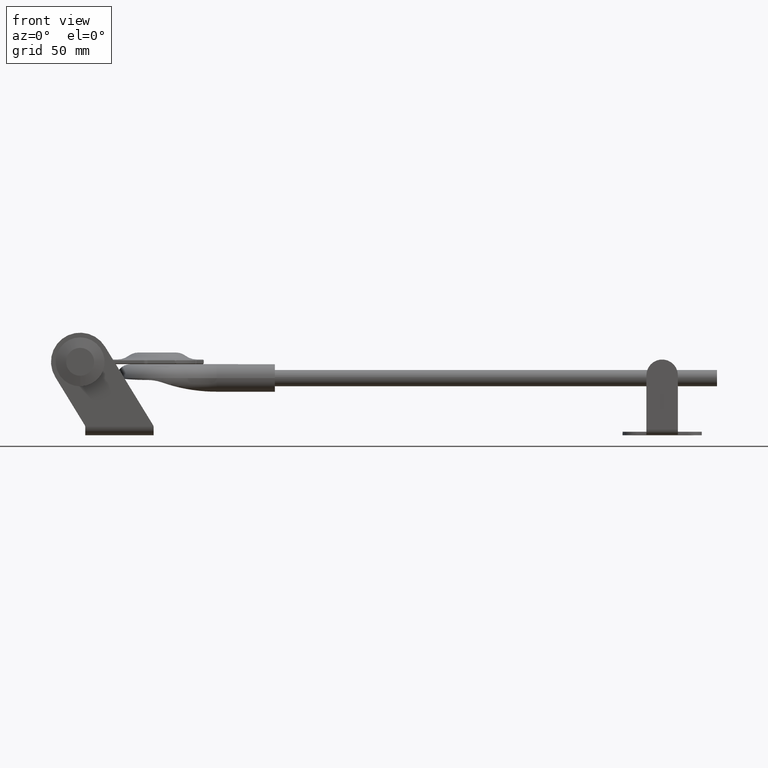
[diagram: clean part render]
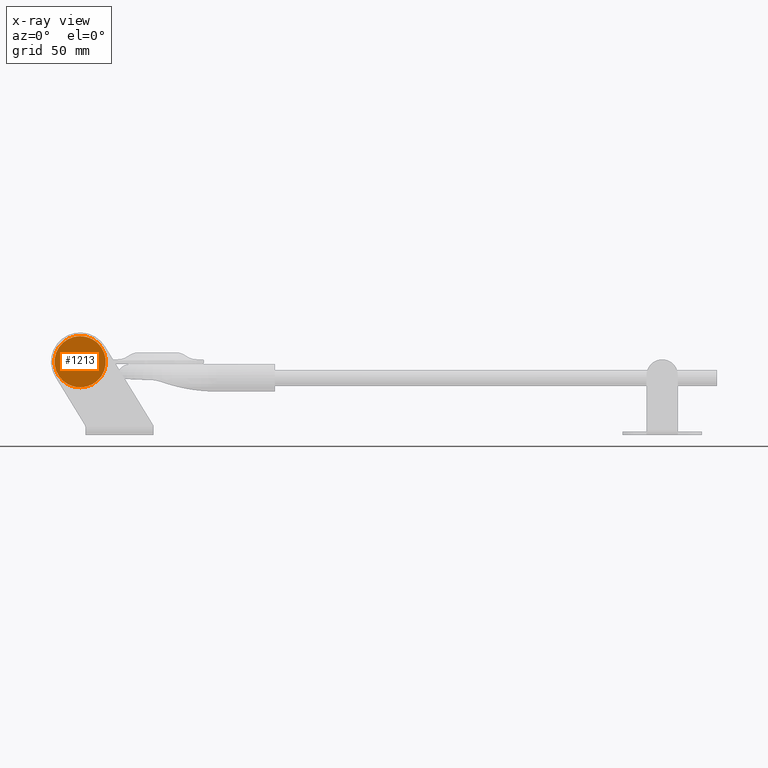
[diagram: x-ray — body ghosted, one internal face saturated and labeled with its STEP entity id]
A machine part, front view, then the same camera in x-ray: the body is ghosted and one INTERNAL B-rep face — a face not visible from any outside direction — is saturated and labeled: STEP entity #1213.
In plain terms, the highlighted planar face has unit normal (0, -1, 0).
Its self-contained STEP definition (entity closure, byte-faithful):
#1213 = ADVANCED_FACE ( 'NONE', ( #22680 ), #17088, .F. ) ;
#2064 = CARTESIAN_POINT ( 'NONE',  ( 1.734723475976807094E-15, 4.999999999999997335, 0.000000000000000000 ) ) ;
#6684 = VERTEX_POINT ( 'NONE', #8780 ) ;
#8780 = CARTESIAN_POINT ( 'NONE',  ( 1.734723475976807094E-15, 4.999999999999997335, 11.00000000000000000 ) ) ;
#9551 = DIRECTION ( 'NONE',  ( 0.000000000000000000, 0.000000000000000000, 1.000000000000000000 ) ) ;
#11169 = EDGE_LOOP ( 'NONE', ( #12634 ) ) ;
#12634 = ORIENTED_EDGE ( 'NONE', *, *, #13672, .T. ) ;
#13279 = AXIS2_PLACEMENT_3D ( 'NONE', #20926, #19091, #22743 ) ;
#13672 = EDGE_CURVE ( 'NONE', #6684, #6684, #17741, .T. ) ;
#16807 = DIRECTION ( 'NONE',  ( -0.000000000000000000, 1.000000000000000000, -0.000000000000000000 ) ) ;
#17088 = PLANE ( 'NONE',  #13279 ) ;
#17741 = CIRCLE ( 'NONE', #20890, 11.00000000000000000 ) ;
#19091 = DIRECTION ( 'NONE',  ( 0.000000000000000000, -1.000000000000000000, 0.000000000000000000 ) ) ;
#20890 = AXIS2_PLACEMENT_3D ( 'NONE', #2064, #16807, #9551 ) ;
#20926 = CARTESIAN_POINT ( 'NONE',  ( 11.00000000000000178, 4.999999999999997335, 0.000000000000000000 ) ) ;
#22680 = FACE_OUTER_BOUND ( 'NONE', #11169, .T. ) ;
#22743 = DIRECTION ( 'NONE',  ( 0.000000000000000000, -0.000000000000000000, -1.000000000000000000 ) ) ;